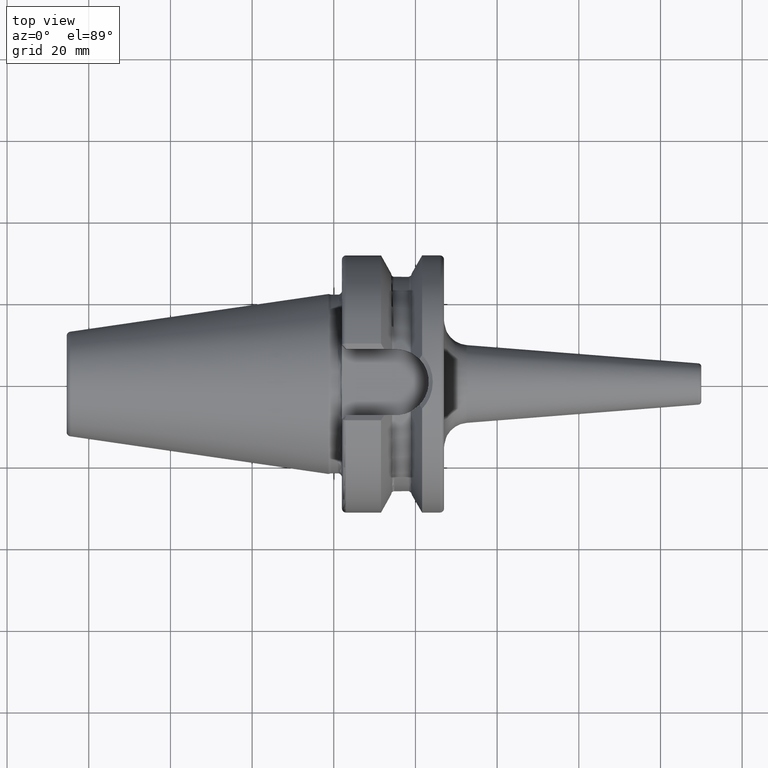
[diagram: clean part render]
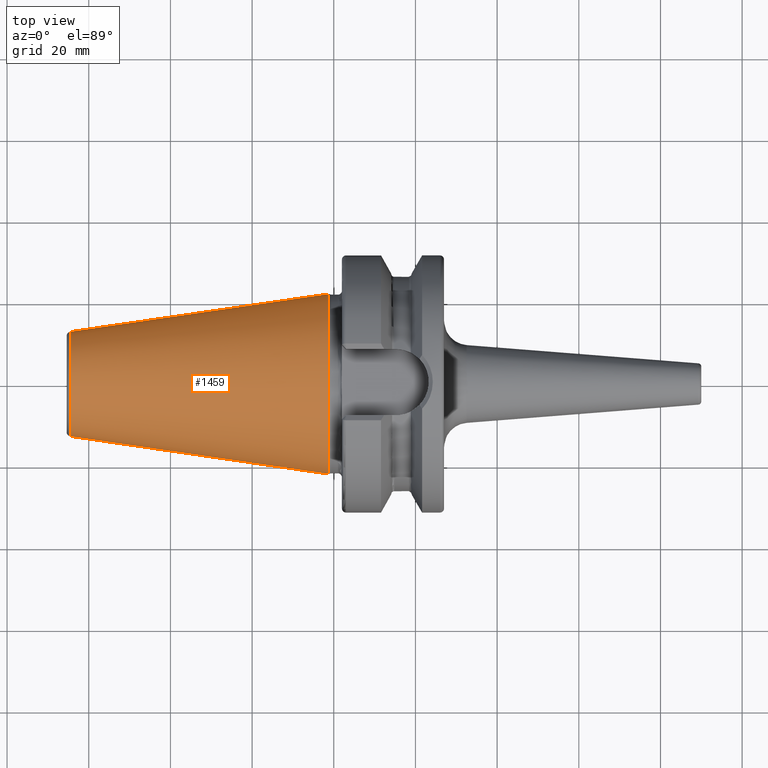
[diagram: same view with one face highlighted and labeled with its STEP entity id]
A machine part, top view. The second image highlights one B-rep face of the part: STEP entity #1459.
In plain terms, the highlighted conical surface has half-angle 8.298 deg.
Its self-contained STEP definition (entity closure, byte-faithful):
#37=CARTESIAN_POINT('',(-6.454431866917E1,0.E0,0.E0));
#38=DIRECTION('',(1.E0,0.E0,0.E0));
#39=DIRECTION('',(0.E0,1.E0,0.E0));
#40=AXIS2_PLACEMENT_3D('',#37,#38,#39);
#42=CARTESIAN_POINT('',(-1.266732031557E0,0.E0,0.E0));
#43=DIRECTION('',(1.E0,0.E0,0.E0));
#44=DIRECTION('',(0.E0,1.E0,0.E0));
#45=AXIS2_PLACEMENT_3D('',#42,#43,#44);
#47=DIRECTION('',(-9.895312636440E-1,-1.443186691705E-1,0.E0));
#48=VECTOR('',#47,6.394703124850E1);
#49=CARTESIAN_POINT('',(-1.266732031557E0,2.204025284980E1,0.E0));
#50=LINE('',#49,#48);
#51=DIRECTION('',(-9.895312636440E-1,1.443186691705E-1,0.E0));
#52=VECTOR('',#51,6.394703124850E1);
#53=CARTESIAN_POINT('',(-1.266732031557E0,-2.204025284980E1,0.E0));
#54=LINE('',#53,#52);
#1152=CARTESIAN_POINT('',(-6.454431866917E1,1.281150240261E1,0.E0));
#1154=VERTEX_POINT('',#1152);
#1156=CARTESIAN_POINT('',(-6.454431866917E1,-1.281150240261E1,0.E0));
#1158=VERTEX_POINT('',#1156);
#1371=CARTESIAN_POINT('',(-1.266732031557E0,2.204025284980E1,0.E0));
#1372=VERTEX_POINT('',#1371);
#1373=CARTESIAN_POINT('',(-1.266732031557E0,-2.204025284980E1,0.E0));
#1374=VERTEX_POINT('',#1373);
#1445=CARTESIAN_POINT('',(-3.290552535036E1,0.E0,0.E0));
#1446=DIRECTION('',(1.E0,0.E0,0.E0));
#1447=DIRECTION('',(0.E0,-1.E0,0.E0));
#1448=AXIS2_PLACEMENT_3D('',#1445,#1446,#1447);
#1449=CONICAL_SURFACE('',#1448,1.742587762621E1,8.297826828206E0);
#1451=ORIENTED_EDGE('',*,*,#1450,.F.);
#1453=ORIENTED_EDGE('',*,*,#1452,.T.);
#1455=ORIENTED_EDGE('',*,*,#1454,.T.);
#1456=ORIENTED_EDGE('',*,*,#1438,.F.);
#1457=EDGE_LOOP('',(#1451,#1453,#1455,#1456));
#1458=FACE_OUTER_BOUND('',#1457,.F.);
#1459=ADVANCED_FACE('',(#1458),#1449,.T.);
#41=CIRCLE('',#40,1.281150240261E1);
#46=CIRCLE('',#45,2.204025284980E1);
#1438=EDGE_CURVE('',#1154,#1158,#41,.T.);
#1450=EDGE_CURVE('',#1372,#1154,#50,.T.);
#1452=EDGE_CURVE('',#1372,#1374,#46,.T.);
#1454=EDGE_CURVE('',#1374,#1158,#54,.T.);